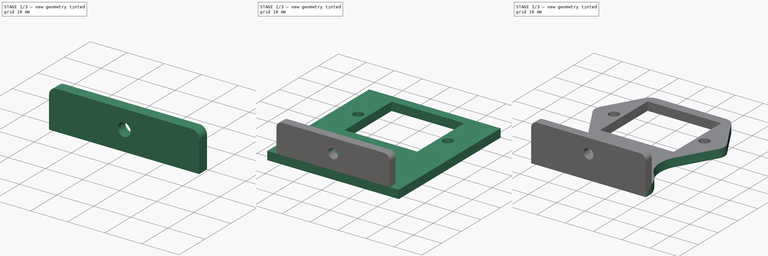
[diagram: build sequence overview — one tinted view per stage of 3, left to right]
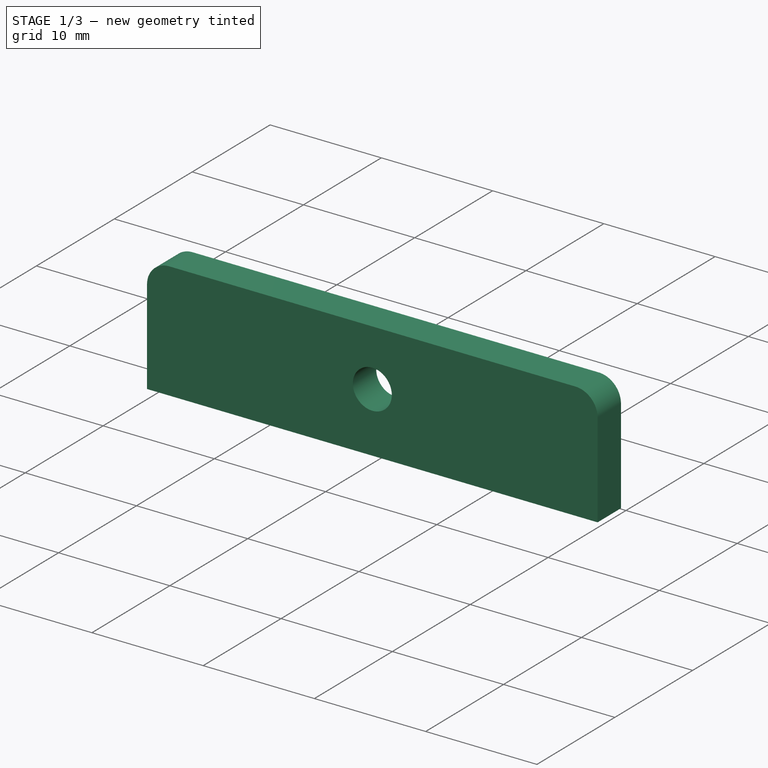
[diagram: stage 1 of 3 — iso view after this stage's code; geometry added in this stage tinted green]
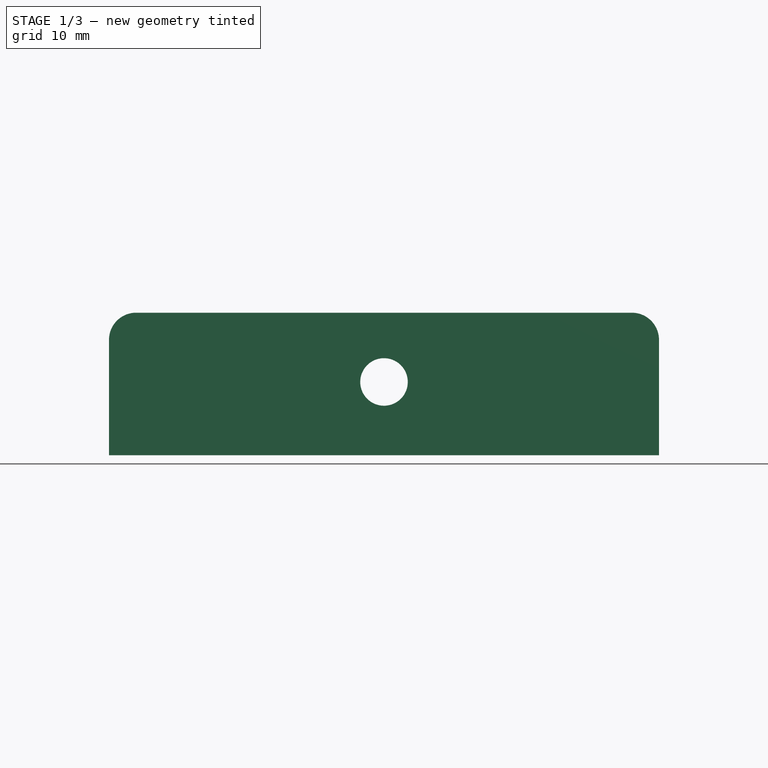
[diagram: stage 1 of 3 — front view after this stage's code; geometry added in this stage tinted green]
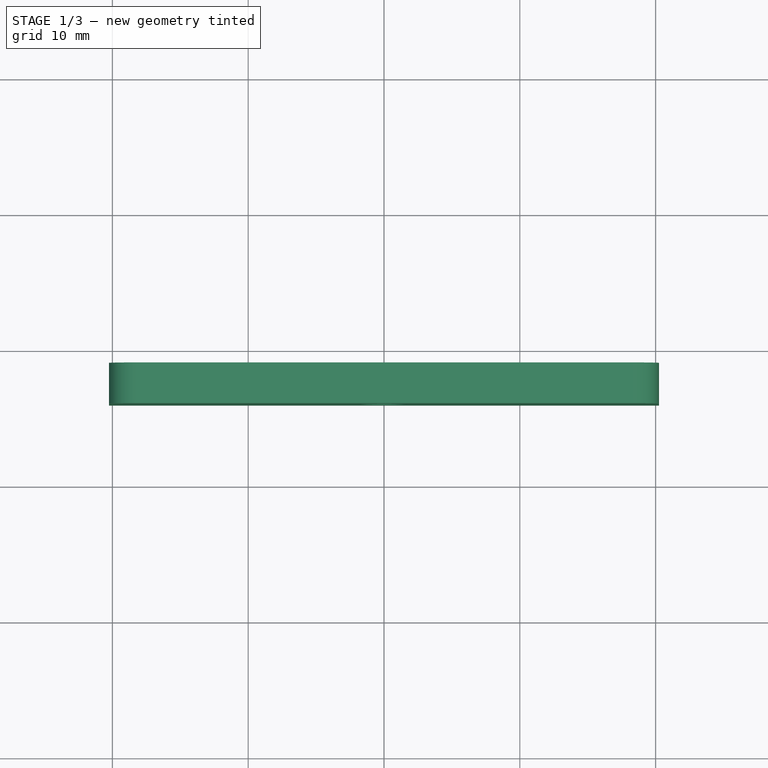
[diagram: stage 1 of 3 — top view after this stage's code; geometry added in this stage tinted green]
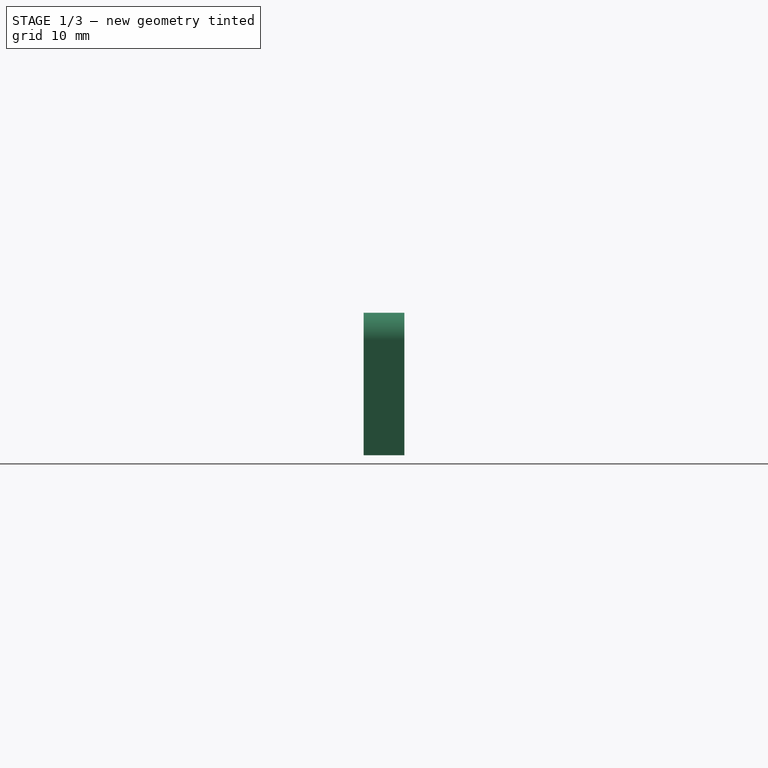
[diagram: stage 1 of 3 — right view after this stage's code; geometry added in this stage tinted green]
FCSTD DOCUMENT  (FreeCAD 0.15R4544 (Git))
Label: test
License: CC-BY 3.0
LicenseURL: http://creativecommons.org/licenses/by/3.0/
objects: Sketcher::SketchObject×3, PartDesign::Pocket×3, Part::Box×2, Part::Fillet×2, Part::MultiFuse×1
note: 14 computed .brp shape members not serialized (recipe doc carries the construction recipe); baked Part::Feature solids carry a one-line shape summary decoded from their .brp

FEATURE [Part::Box] Box002  label="Cube_drill_base"
  Height = 10.5
  Length = 40.5
  Placement = pos=(-20.25,56,-31) rot=(0,0,1;0rad)
  Width = 3
FEATURE [Part::Fillet] Fillet015  label="Fillet_drill_base"
  Base = -> Box002
  Edges = 2 edges r=2: [Edge2,Edge6]
FEATURE [Sketcher::SketchObject] Sketch002  label="Sketch_drill"
  ExternalGeometry = -> [Fillet015]
  Placement = pos=(0,59,0) rot=(0,0.707107,0.707107;3.14159rad)
  Support = -> Fillet015 [Face5]
  sketch-geometry (1):
    g0: Circle CenterX=0 CenterY=-25.6 CenterZ=0 NormalX=0 NormalY=0 NormalZ=1 Radius=1.75
  constraints (3):
    c: Radius(g0) = 1.75
    c: DistanceX(g0,g-3) = -20.25
    c: DistanceY(g0,g-3) = -5.4
FEATURE [PartDesign::Pocket] Pocket006  label="Pocket_drill"
  Length = 5
  Sketch = -> Sketch002
  Type = 0
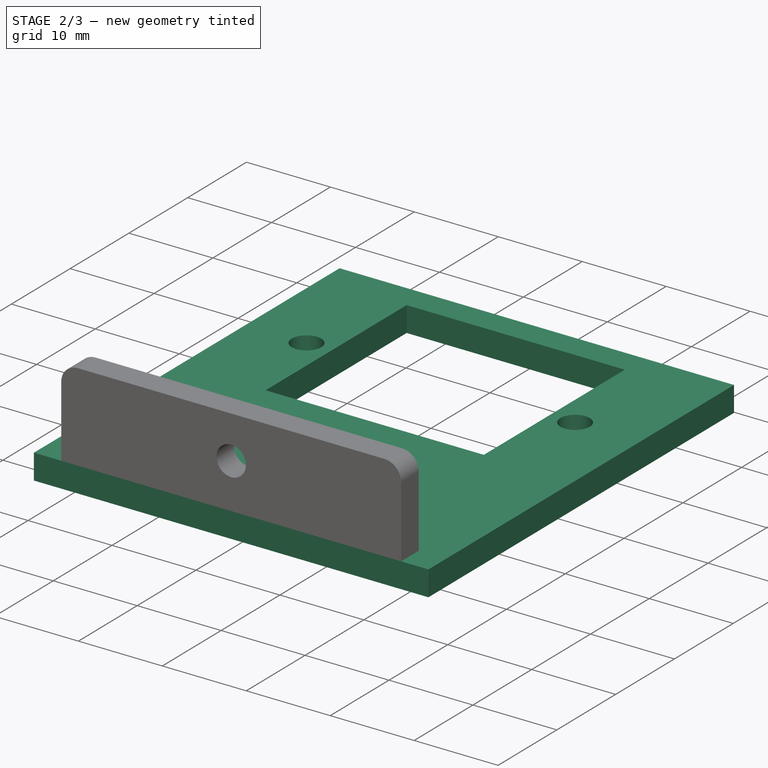
[diagram: stage 2 of 3 — iso view after this stage's code; geometry added in this stage tinted green]
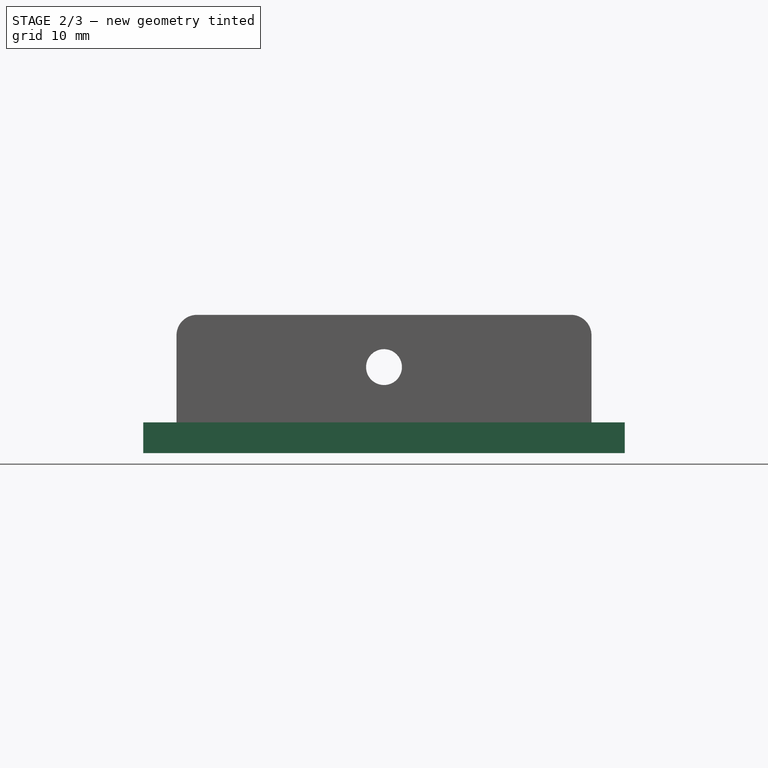
[diagram: stage 2 of 3 — front view after this stage's code; geometry added in this stage tinted green]
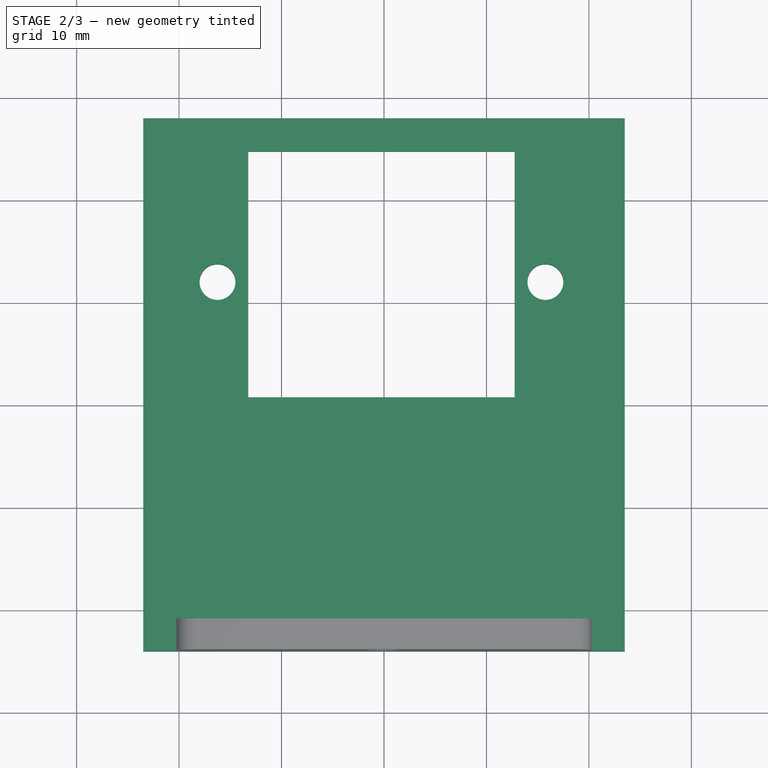
[diagram: stage 2 of 3 — top view after this stage's code; geometry added in this stage tinted green]
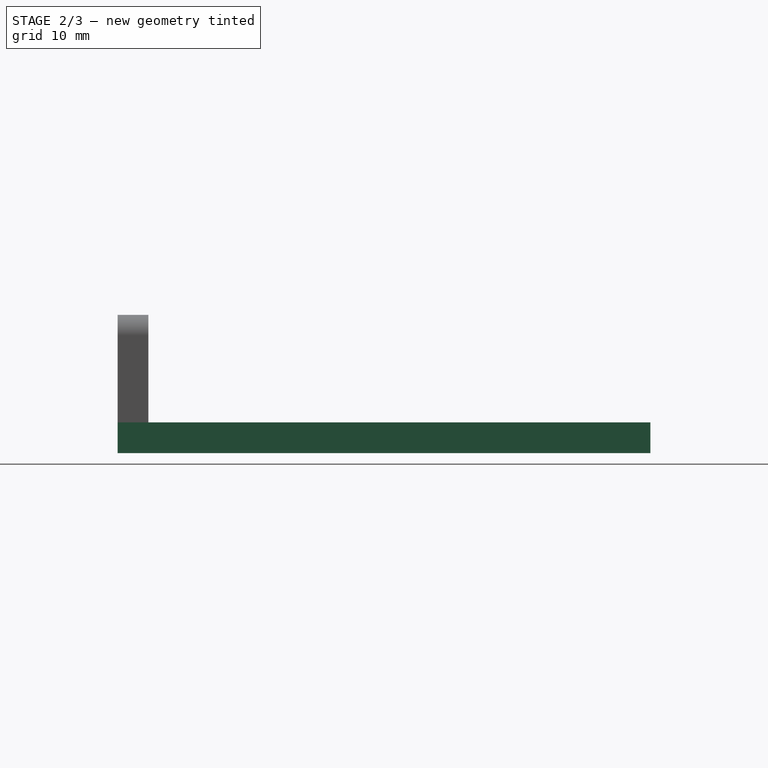
[diagram: stage 2 of 3 — right view after this stage's code; geometry added in this stage tinted green]
FEATURE [Part::Box] Box001  label="Cube_tongue_base"
  Height = 3
  Length = 47
  Placement = pos=(-23.5,56,-34) rot=(0,0,1;0rad)
  Width = 52
FEATURE [Sketcher::SketchObject] Sketch  label="Sketch_Drills_tongue"
  Placement = pos=(-23.5,56,-31) rot=(0,0,1;0rad)
  Support = -> Box001 [Face6]
  sketch-geometry (8):
    g0: LineSegment StartX=10.25 StartY=24.7753 StartZ=0 EndX=36.25 EndY=24.7753 EndZ=0
    g1: LineSegment StartX=36.25 StartY=24.7753 StartZ=0 EndX=36.25 EndY=48.7753 EndZ=0
    g2: LineSegment StartX=36.25 StartY=48.7753 StartZ=0 EndX=10.25 EndY=48.7753 EndZ=0
    g3: LineSegment StartX=10.25 StartY=48.7753 StartZ=0 EndX=10.25 EndY=24.7753 EndZ=0
    g4: Circle CenterX=7.25 CenterY=36.0253 CenterZ=0 NormalX=0 NormalY=0 NormalZ=1 Radius=1.75
    g5: LineSegment [constr] StartX=23.25 StartY=48.7753 StartZ=0 EndX=23.25 EndY=57.5064 EndZ=0
    g6: Circle CenterX=39.25 CenterY=36.0253 CenterZ=0 NormalX=0 NormalY=0 NormalZ=1 Radius=1.75
    g7: LineSegment [constr] StartX=10.25 StartY=36.0253 StartZ=0 EndX=39.25 EndY=36.0253 EndZ=0
  constraints (22):
    c: Coincident(g0,g1)
    c: Coincident(g1,g2)
    c: Coincident(g2,g3)
    c: Coincident(g3,g0)
    c: Horizontal(g0)
    c: Horizontal(g2)
    c: Vertical(g1)
    c: Vertical(g3)
    c: DistanceX(g2) = -26
    c: DistanceY(g3) = -24
    c: DistanceX(g-1,g2) = 10.25
    c: PointOnObject(g5,g2)
    c: Vertical(g5)
    c: Symmetric(g2,g1,g5)
    c: Radius(g6) = 1.75
    c: Equal(g6,g4)
    c: Symmetric(g6,g4,g5)
    c: DistanceX(g4,g5) = 16
    c: PointOnObject(g7,g3)
    c: Horizontal(g7)
    c: Coincident(g6,g7)
    c: DistanceY(g0,g7) = 11.25
FEATURE [PartDesign::Pocket] Pocket004  label="Pocket_Drill_tongue"
  Length = 5
  Placement = pos=(-23.5,56,-34) rot=(0,0,1;0rad)
  Sketch = -> Sketch
  Type = 0
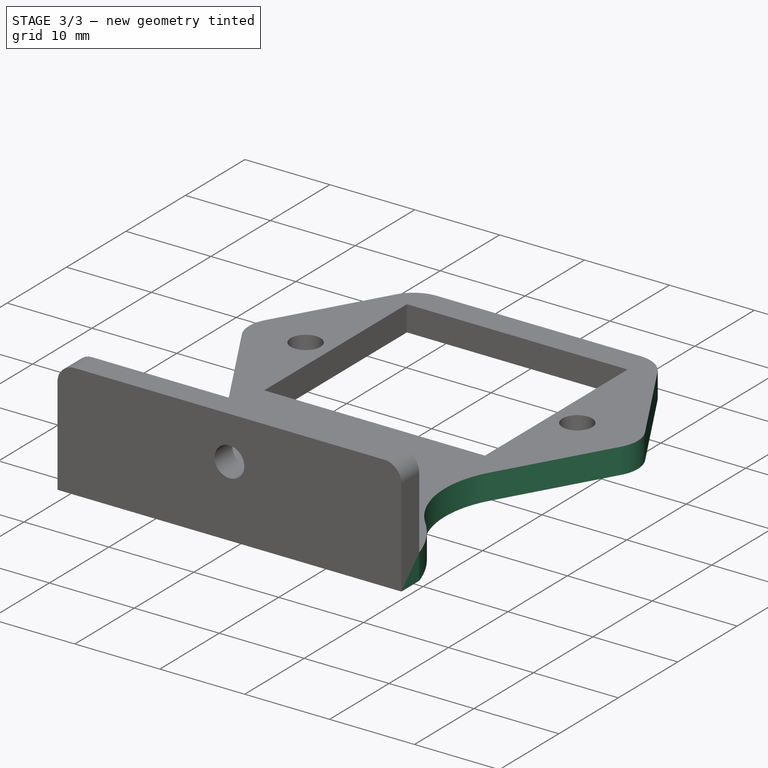
[diagram: stage 3 of 3 — iso view after this stage's code; geometry added in this stage tinted green]
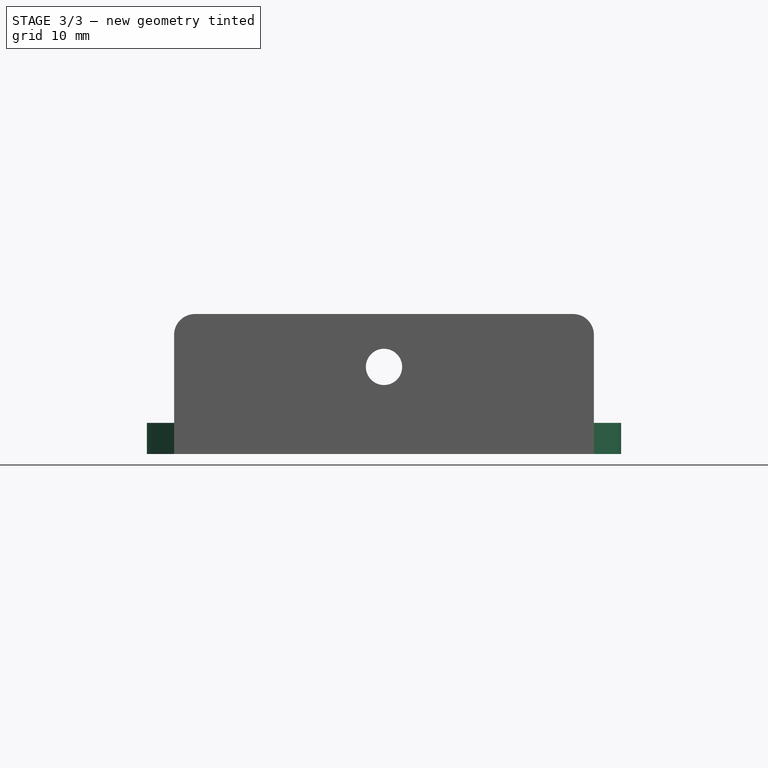
[diagram: stage 3 of 3 — front view after this stage's code; geometry added in this stage tinted green]
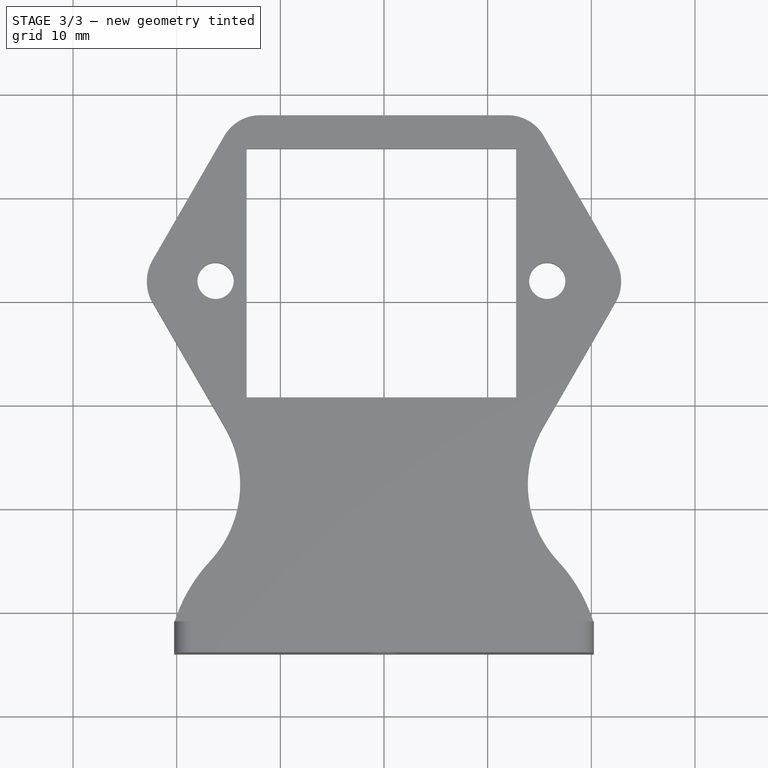
[diagram: stage 3 of 3 — top view after this stage's code; geometry added in this stage tinted green]
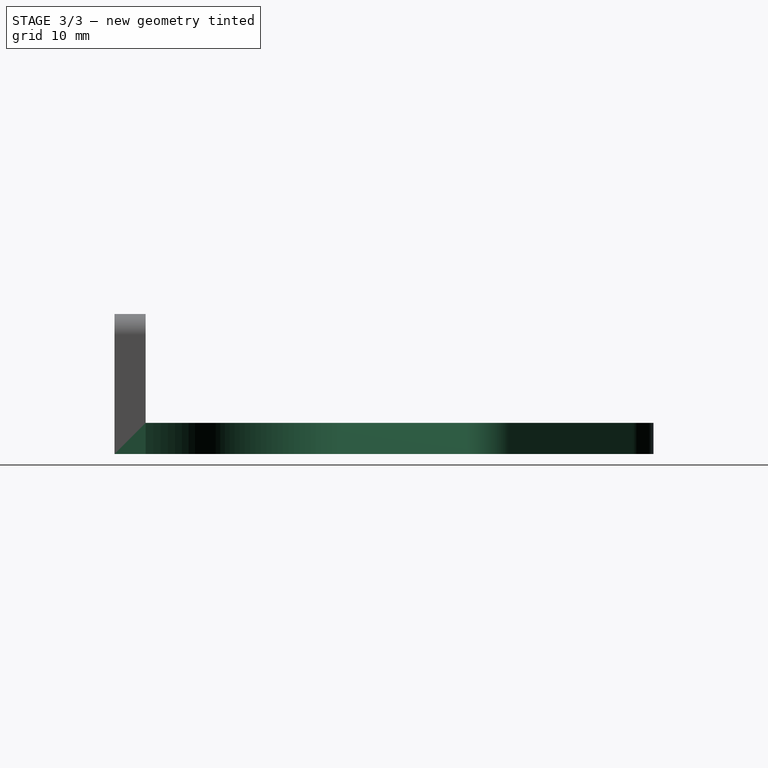
[diagram: stage 3 of 3 — right view after this stage's code; geometry added in this stage tinted green]
FEATURE [Sketcher::SketchObject] Sketch001  label="Sketch_Outline"
  Placement = pos=(-23.5,56,-31) rot=(0,0,1;0rad)
  Support = -> Pocket004 [Face3]
  sketch-geometry (17):
    g0: LineSegment StartX=5e-12 StartY=36 StartZ=0 EndX=9.2376 EndY=52 EndZ=0
    g1: LineSegment StartX=9.2376 StartY=52 StartZ=0 EndX=37.7624 EndY=52 EndZ=0
    g2: LineSegment StartX=37.7624 StartY=52 StartZ=0 EndX=47 EndY=36 EndZ=0
    g3: LineSegment StartX=5e-12 StartY=36 StartZ=0 EndX=8.15287 EndY=21.8788 EndZ=0
    g4: LineSegment StartX=47 StartY=36 StartZ=0 EndX=38.8471 EndY=21.8788 EndZ=0
    g5: LineSegment [constr] StartX=23.5 StartY=52 StartZ=0 EndX=23.5 EndY=8.00846 EndZ=0
    g6: ArcOfCircle CenterX=-1.33393 CenterY=16.4016 CenterZ=0 NormalX=0 NormalY=0 NormalZ=1 Radius=10.9544 StartAngle=5.53492 EndAngle=6.80678
    g7: ArcOfCircle CenterX=48.3339 CenterY=16.4016 CenterZ=0 NormalX=0 NormalY=0 NormalZ=1 Radius=10.9543 StartAngle=2.61799 EndAngle=3.88987
    g8: LineSegment StartX=3.25 StartY=5.3e-11 StartZ=0 EndX=43.75 EndY=3.88e-10 EndZ=0
    g9: LineSegment StartX=-9.30792 StartY=59.309 StartZ=0 EndX=56.8512 EndY=59.309 EndZ=0
    g10: LineSegment StartX=56.8512 StartY=59.309 StartZ=0 EndX=56.8512 EndY=-5.01396 EndZ=0
    g11: LineSegment StartX=56.8512 StartY=-5.01396 StartZ=0 EndX=-9.30792 EndY=-5.01396 EndZ=0
    g12: LineSegment StartX=-9.30792 StartY=-5.01396 StartZ=0 EndX=-9.30792 EndY=59.309 EndZ=0
    g13: LineSegment StartX=3.25 StartY=5.3e-11 StartZ=0 EndX=3.25 EndY=3 EndZ=0
    g14: LineSegment StartX=43.75 StartY=3.88e-10 StartZ=0 EndX=43.75 EndY=3 EndZ=0
    g15: ArcOfCircle CenterX=18.0611 CenterY=-1.60423 CenterZ=0 NormalX=0 NormalY=0 NormalZ=1 Radius=15.5103 StartAngle=2.39332 EndAngle=2.8402
    g16: ArcOfCircle CenterX=28.9389 CenterY=-1.60423 CenterZ=0 NormalX=0 NormalY=0 NormalZ=1 Radius=15.5103 StartAngle=0.301393 EndAngle=0.748272
  constraints (39):
    c: Coincident(g1,g0)
    c: Horizontal(g1)
    c: Coincident(g2,g1)
    c: Coincident(g3,g0)
    c: Angle(g3,g0) = 2.0944
    c: Coincident(g4,g2)
    c: Angle(g2,g4) = 2.0944
    c: DistanceX(g-1,g5) = 23.5
    c: Symmetric(g0,g1,g5)
    c: Coincident(g6,g3)
    c: Tangent(g6,g3)
    c: Coincident(g7,g4)
    c: Tangent(g7,g4)
    c: Equal(g4,g3)
    c: DistanceX(g8) = 40.5
    c: Coincident(g9,g10)
    c: Coincident(g10,g11)
    c: Coincident(g11,g12)
    c: Coincident(g12,g9)
    c: Horizontal(g9)
    c: Horizontal(g11)
    c: Vertical(g10)
    c: Vertical(g12)
    c: Coincident(g13,g8)
    c: Symmetric(g8,g8,g5)
    c: Vertical(g13)
    c: DistanceY(g13) = 3
    c: Coincident(g14,g8)
    c: Vertical(g14)
    c: DistanceY(g14) = 3
    c: Coincident(g15,g13)
    c: Coincident(g15,g6)
    c: Tangent(g15,g6)
    c: PointOnObject(g8,g-1)
    c: Coincident(g16,g7)
    c: Coincident(g16,g14)
    c: Equal(g16,g15)
    c: Tangent(g7,g16)
    c: Symmetric(g6,g7,g5)
FEATURE [PartDesign::Pocket] Pocket005  label="Pocket_outline"
  Length = 5
  Placement = pos=(-23.5,56,-34) rot=(0,0,1;0rad)
  Sketch = -> Sketch001
  Type = 0
FEATURE [Part::Fillet] Fillet014  label="Fillet_tongue_base"
  Base = -> Pocket005
  Edges = 4 edges r=4: [Edge2,Edge4,Edge23,Edge41]
FEATURE [Part::MultiFuse] Fusion005  label="Renacuajo_doubleIR_tongue"
  Shapes = -> [Pocket006,Fillet014]
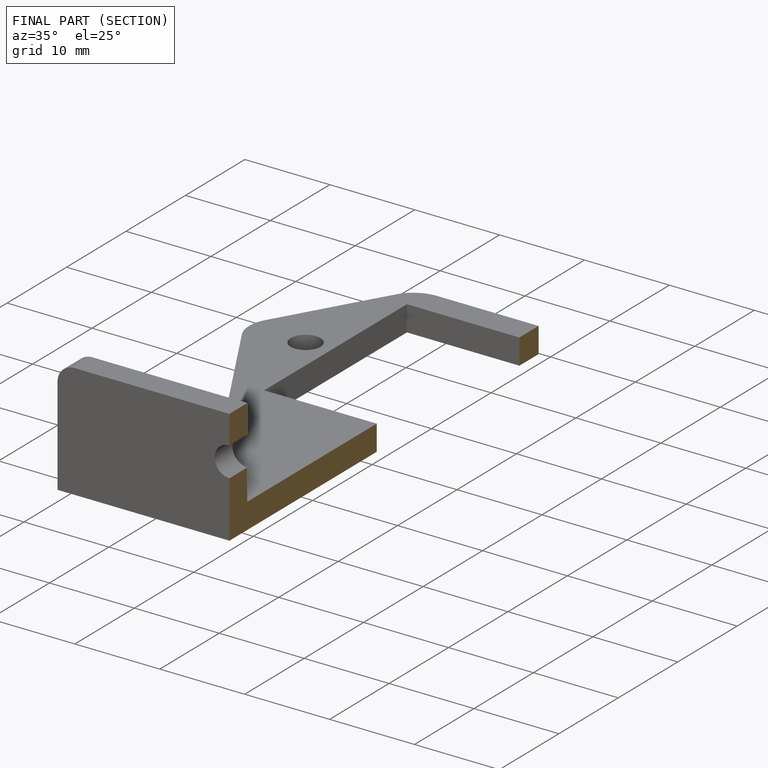
[diagram: finished part — half-section view (interior)]
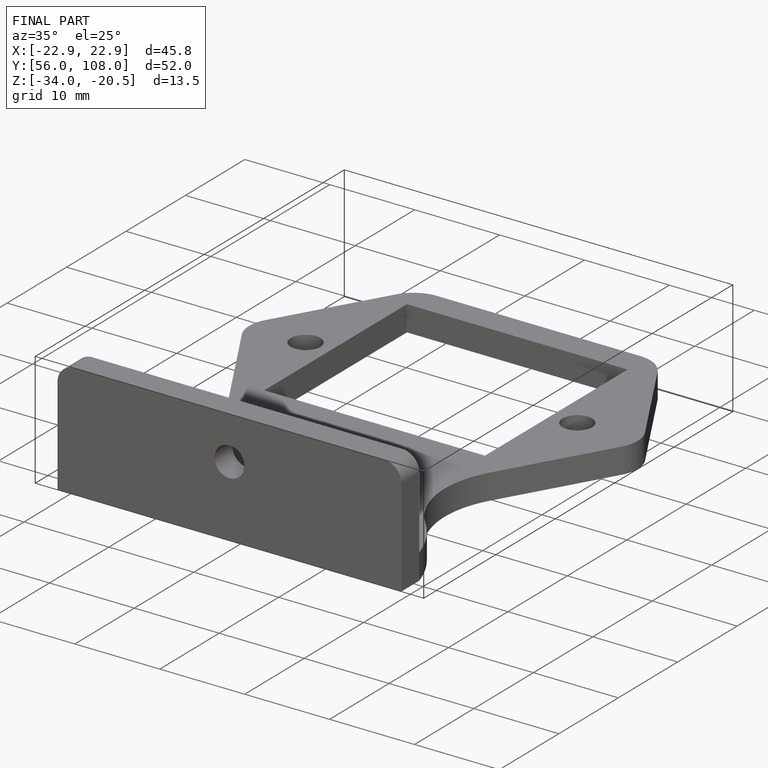
[diagram: finished part — iso view with bounding-box wireframe]
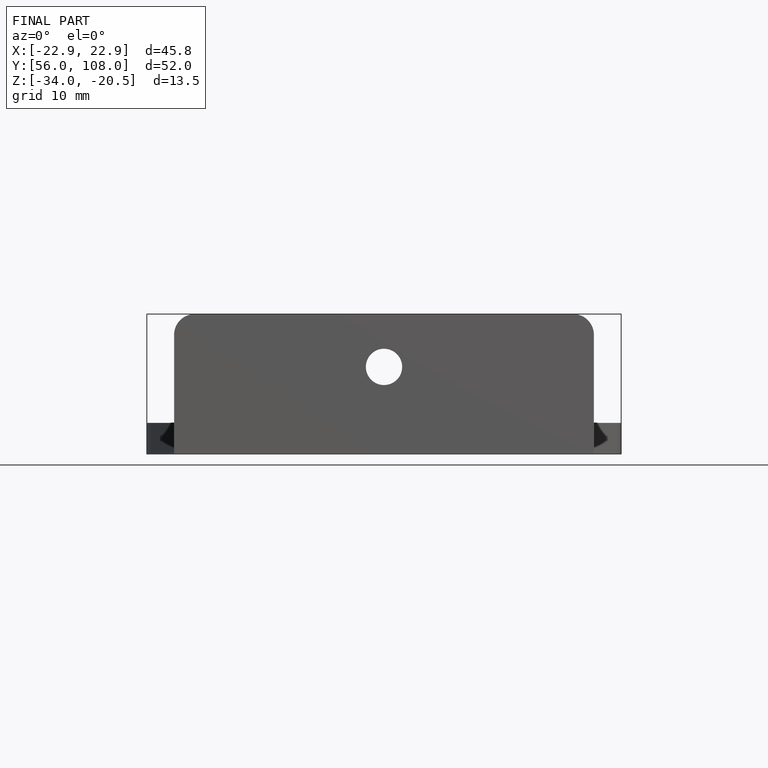
[diagram: finished part — front view with bounding-box wireframe]
